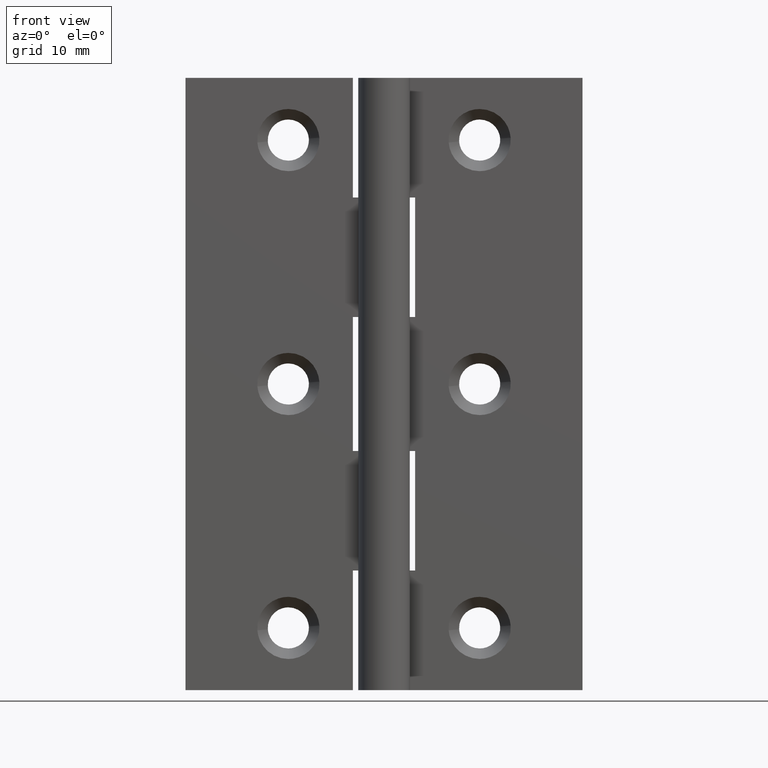
[diagram: clean part render]
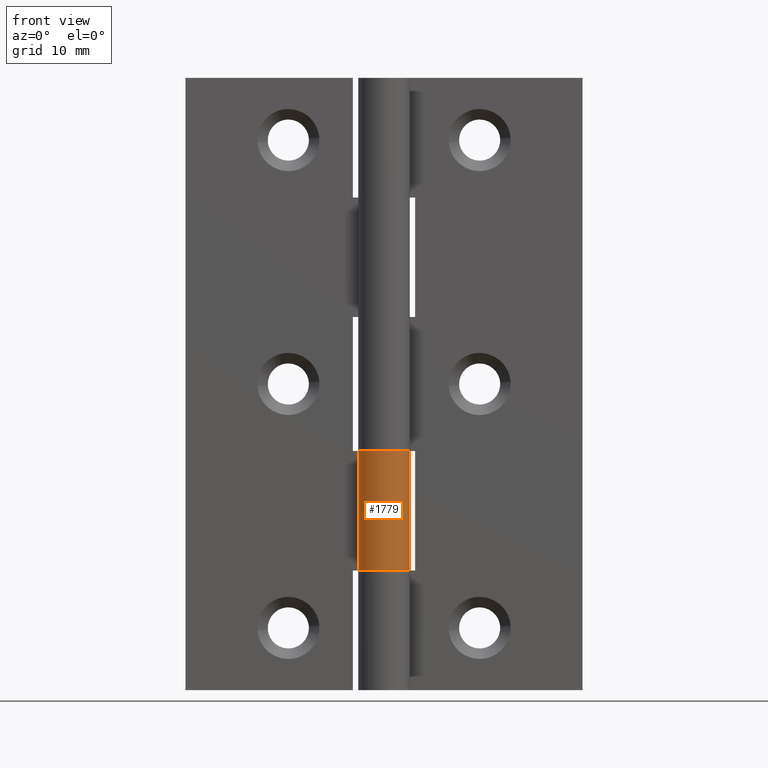
[diagram: same view with one face highlighted and labeled with its STEP entity id]
A machine part, front view. The second image highlights one B-rep face of the part: STEP entity #1779.
In plain terms, the highlighted face is a freeform B-spline surface patch.
Its self-contained STEP definition (entity closure, byte-faithful):
#1390=CARTESIAN_POINT('',(-2.277608394786080,1.450000000000000,25.0));
#1391=VERTEX_POINT('',#1390);
#1392=CARTESIAN_POINT('',(1.653219E-016,2.700000000000000,25.0));
#1393=VERTEX_POINT('',#1392);
#1394=CARTESIAN_POINT('',(-2.277608394786077,1.449999999999998,25.0));
#1395=CARTESIAN_POINT('',(-3.402760049365827,-0.317348175088477,25.0));
#1396=CARTESIAN_POINT('',(-1.970202022019794,-1.846159254351887,25.0));
#1397=CARTESIAN_POINT('',(-0.537643994673761,-3.374970333615297,25.0));
#1398=CARTESIAN_POINT('',(1.299038105676661,-2.366960075708923,25.0));
#1399=CARTESIAN_POINT('',(3.135720206027080,-1.358949817802551,25.0));
#1400=CARTESIAN_POINT('',(2.615415091760207,0.670525091098722,25.0));
#1401=CARTESIAN_POINT('',(2.095109977493334,2.700000000000000,25.0));
#1402=CARTESIAN_POINT('',(0.0,2.700000000000000,25.0));
#1410=(BOUNDED_CURVE()B_SPLINE_CURVE(2,(#1394,#1395,#1396,#1397,#1398,#1399,#1400,#1401,#1402),.UNSPECIFIED.,.F.,.U.)B_SPLINE_CURVE_WITH_KNOTS((3,2,2,2,3),(0.0,0.250000000000000,0.500000000000000,0.750000000000000,1.0),.UNSPECIFIED.)CURVE()GEOMETRIC_REPRESENTATION_ITEM()RATIONAL_B_SPLINE_CURVE((1.0,0.790045133626194,1.0,0.790045133626194,1.0,0.790045133626194,1.0,0.790045133626194,1.0))REPRESENTATION_ITEM(''));
#1411=EDGE_CURVE('',#1391,#1393,#1410,.T.);
#1602=CARTESIAN_POINT('',(-2.277608394786080,1.450000000000000,12.499999999999719));
#1603=VERTEX_POINT('',#1602);
#1604=CARTESIAN_POINT('',(0.0,2.700001000000000,12.499999999999799));
#1605=VERTEX_POINT('',#1604);
#1606=CARTESIAN_POINT('',(-2.277608394786080,1.450000000000000,12.499999999999719));
#1607=CARTESIAN_POINT('',(-3.402760049365833,-0.317348882027743,12.499999999999664));
#1608=CARTESIAN_POINT('',(-1.970202022019799,-1.846159761025622,12.499999999999680));
#1609=CARTESIAN_POINT('',(-0.537643994673765,-3.374970640023501,12.499999999999696));
#1610=CARTESIAN_POINT('',(1.299038105676659,-2.366959575708922,12.499999999999760));
#1611=CARTESIAN_POINT('',(3.135720206027081,-1.358948511394346,12.499999999999824));
#1612=CARTESIAN_POINT('',(2.615415091760209,0.670526597772459,12.499999999999840));
#1613=CARTESIAN_POINT('',(2.095109977493337,2.700001706939268,12.499999999999858));
#1614=CARTESIAN_POINT('',(0.0,2.700001000000000,12.499999999999799));
#1622=(BOUNDED_CURVE()B_SPLINE_CURVE(2,(#1606,#1607,#1608,#1609,#1610,#1611,#1612,#1613,#1614),.UNSPECIFIED.,.F.,.U.)B_SPLINE_CURVE_WITH_KNOTS((3,2,2,2,3),(0.0,0.250000000000000,0.500000000000000,0.750000000000000,1.0),.UNSPECIFIED.)CURVE()GEOMETRIC_REPRESENTATION_ITEM()RATIONAL_B_SPLINE_CURVE((1.0,0.790045133626194,1.0,0.790045133626194,1.0,0.790045133626194,1.0,0.790045133626194,1.0))REPRESENTATION_ITEM(''));
#1623=EDGE_CURVE('',#1603,#1605,#1622,.T.);
#1743=CARTESIAN_POINT('',(-2.225140709279442,1.529296839697048,25.312500000000011));
#1744=CARTESIAN_POINT('',(-2.225140709279442,1.529296839697048,12.179687499999670));
#1745=CARTESIAN_POINT('',(-4.147730332970872,-1.268088421205942,25.312500000000007));
#1746=CARTESIAN_POINT('',(-4.147730332970872,-1.268088421205942,12.179687499999668));
#1747=CARTESIAN_POINT('',(-0.989553312155601,-2.512127433551466,25.312500000000011));
#1748=CARTESIAN_POINT('',(-0.989553312155601,-2.512127433551466,12.179687499999670));
#1749=CARTESIAN_POINT('',(2.168623708659669,-3.756166445896991,25.312500000000007));
#1750=CARTESIAN_POINT('',(2.168623708659669,-3.756166445896991,12.179687499999668));
#1751=CARTESIAN_POINT('',(2.670342831077175,-0.399085410049946,25.312500000000011));
#1752=CARTESIAN_POINT('',(2.670342831077175,-0.399085410049946,12.179687499999670));
#1753=CARTESIAN_POINT('',(3.172061953494680,2.957995625797097,25.312500000000007));
#1754=CARTESIAN_POINT('',(3.172061953494680,2.957995625797097,12.179687499999668));
#1755=CARTESIAN_POINT('',(-0.211839558465185,2.691676801079445,25.312500000000011));
#1756=CARTESIAN_POINT('',(-0.211839558465185,2.691676801079445,12.179687499999670));
#1764=(BOUNDED_SURFACE()B_SPLINE_SURFACE(1,2,((#1743,#1745,#1747,#1749,#1751,#1753,#1755),(#1744,#1746,#1748,#1750,#1752,#1754,#1756)),.UNSPECIFIED.,.F.,.F.,.U.)B_SPLINE_SURFACE_WITH_KNOTS((2,2),(3,2,2,3),(0.0,13.132812500000339),(0.0,5.209301600829762,10.418603201659520,15.627904802489290),.UNSPECIFIED.)GEOMETRIC_REPRESENTATION_ITEM()RATIONAL_B_SPLINE_SURFACE(((1.0,0.622514636637620,1.0,0.622514636637620,1.0,0.622514636637620,1.0),(1.0,0.622514636637620,1.0,0.622514636637620,1.0,0.622514636637620,1.0)))REPRESENTATION_ITEM('')SURFACE());
#1765=ORIENTED_EDGE('',*,*,#1411,.F.);
#1766=CARTESIAN_POINT('',(-2.277608394786080,1.450000000000000,25.0));
#1767=CARTESIAN_POINT('',(-2.277608394786080,1.450000000000000,12.499999999999719));
#1768=QUASI_UNIFORM_CURVE('',1,(#1766,#1767),.UNSPECIFIED.,.F.,.U.);
#1769=EDGE_CURVE('',#1391,#1603,#1768,.T.);
#1770=ORIENTED_EDGE('',*,*,#1769,.T.);
#1771=ORIENTED_EDGE('',*,*,#1623,.T.);
#1772=CARTESIAN_POINT('',(1.653219E-016,2.700000000000000,25.0));
#1773=CARTESIAN_POINT('',(0.0,2.700001000000000,12.499999999999799));
#1774=QUASI_UNIFORM_CURVE('',1,(#1772,#1773),.UNSPECIFIED.,.F.,.U.);
#1775=EDGE_CURVE('',#1393,#1605,#1774,.T.);
#1776=ORIENTED_EDGE('',*,*,#1775,.F.);
#1777=EDGE_LOOP('',(#1765,#1770,#1771,#1776));
#1778=FACE_OUTER_BOUND('',#1777,.T.);
#1779=ADVANCED_FACE('',(#1778),#1764,.T.);